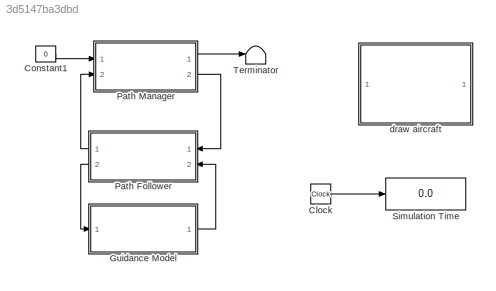
MODEL slx_3d5147ba3dbd
KIND model
CONFIG AbsTol = auto
CONFIG FixedStep = auto
CONFIG InitFcn = param_chap10
CONFIG MaxStep = auto
CONFIG MinStep = auto
CONFIG RelTol = 1e-3
CONFIG SampleTimeConstraint = Unconstrained
CONFIG Solver = ode45
CONFIG SolverMode = Auto
CONFIG SolverName = ode45
CONFIG StartTime = 0.0
CONFIG StopTime = 400
BLOCK [Clock] Clock
BLOCK [Constant] Constant1
  Value = 0
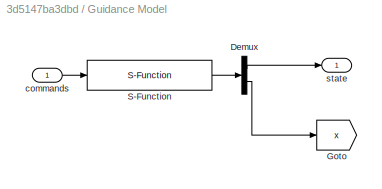
BLOCK [SubSystem] Guidance Model
  Ports = [1, 1]
  RequestExecContextInheritance = off
  Variant = off
BLOCK [Demux] Guidance Model/Demux
  DisplayOption = bar
  Outputs = [16;12]
  Ports = [1, 2]
BLOCK [Goto] Guidance Model/Goto
  GotoTag = x
  TagVisibility = global
BLOCK [S-Function] Guidance Model/S-Function
  EnableBusSupport = off
  FunctionName = guidance_model
  Parameters = P
  Ports = [1, 1]
  SFunctionDeploymentMode = off
BLOCK [Inport] Guidance Model/commands
  IconDisplay = Port number
BLOCK [Outport] Guidance Model/state
  IconDisplay = Port number
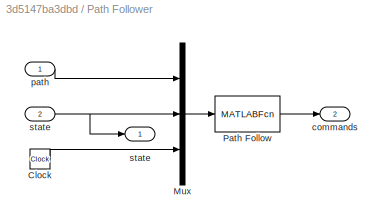
BLOCK [SubSystem] Path Follower
  Ports = [2, 2]
  RequestExecContextInheritance = off
  Variant = off
BLOCK [Clock] Path Follower/Clock
BLOCK [Mux] Path Follower/Mux
  DisplayOption = bar
  Inputs = 3
  Ports = [3, 1]
BLOCK [MATLABFcn] Path Follower/Path Follow
  MATLABFcn = path_follow(u,P)
  OutputDimensions = 4
  Ports = [1, 1]
  SampleTime = P.Ts
BLOCK [Outport] Path Follower/commands
  IconDisplay = Port number
  Port = 2
BLOCK [Inport] Path Follower/path
  IconDisplay = Port number
BLOCK [Inport] Path Follower/state
  IconDisplay = Port number
  Port = 2
BLOCK [Outport] Path Follower/state 
  IconDisplay = Port number
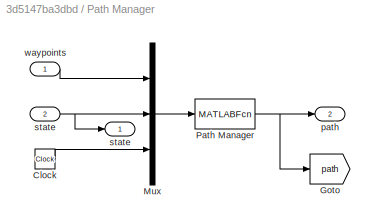
BLOCK [SubSystem] Path Manager
  Ports = [2, 2]
  RequestExecContextInheritance = off
  Variant = off
BLOCK [Clock] Path Manager/Clock
BLOCK [Goto] Path Manager/Goto
  GotoTag = path
  TagVisibility = global
BLOCK [Mux] Path Manager/Mux
  DisplayOption = bar
  Inputs = 3
  Ports = [3, 1]
BLOCK [MATLABFcn] Path Manager/Path Manager
  MATLABFcn = path_manager_chap10(u)
  OutputDimensions = 13
  Ports = [1, 1]
  SampleTime = P.Ts
BLOCK [Outport] Path Manager/path
  IconDisplay = Port number
  Port = 2
BLOCK [Inport] Path Manager/state
  IconDisplay = Port number
  Port = 2
BLOCK [Outport] Path Manager/state 
  IconDisplay = Port number
BLOCK [Inport] Path Manager/waypoints
  IconDisplay = Port number
BLOCK [Display] Simulation Time
  Decimation = 1
  Ports = [1]
BLOCK [Terminator] Terminator
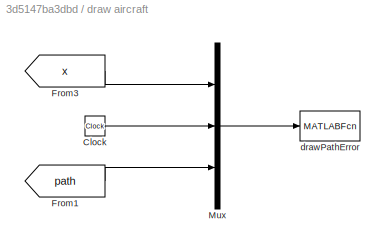
BLOCK [SubSystem] draw aircraft
  Ports = []
  RequestExecContextInheritance = off
  Variant = off
BLOCK [Clock] draw aircraft/Clock
BLOCK [From] draw aircraft/From1
  CloseFcn = tagdialog Close
  GotoTag = path
  TagVisibility = global
BLOCK [From] draw aircraft/From3
  CloseFcn = tagdialog Close
  GotoTag = x
  TagVisibility = global
BLOCK [Mux] draw aircraft/Mux
  DisplayOption = bar
  Inputs = 3
  Ports = [3, 1]
BLOCK [MATLABFcn] draw aircraft/drawPathError
  MATLABFcn = drawPathError(u)
  OutputDimensions = 0
  Ports = [1]
  SampleTime = 0.1
LINE Clock:1 -> Simulation Time:1
LINE Constant1:1 -> Path Manager:1
LINE Guidance Model/Demux:1 -> Guidance Model/state:1
LINE Guidance Model/Demux:2 -> Guidance Model/Goto:1
LINE Guidance Model/S-Function:1 -> Guidance Model/Demux:1
LINE Guidance Model/commands:1 -> Guidance Model/S-Function:1
LINE Guidance Model:1 -> Path Follower:2
LINE Path Follower/Clock:1 -> Path Follower/Mux:3
LINE Path Follower/Mux:1 -> Path Follower/Path Follow:1
LINE Path Follower/Path Follow:1 -> Path Follower/commands:1
LINE Path Follower/path:1 -> Path Follower/Mux:1
NET Path Follower/state:1 -> Path Follower/Mux:2, Path Follower/state :1
LINE Path Follower:1 -> Path Manager:2
LINE Path Follower:2 -> Guidance Model:1
LINE Path Manager/Clock:1 -> Path Manager/Mux:3
LINE Path Manager/Mux:1 -> Path Manager/Path Manager:1
NET Path Manager/Path Manager:1 -> Path Manager/Goto:1, Path Manager/path:1
NET Path Manager/state:1 -> Path Manager/Mux:2, Path Manager/state :1
LINE Path Manager/waypoints:1 -> Path Manager/Mux:1
LINE Path Manager:1 -> Terminator:1
LINE Path Manager:2 -> Path Follower:1
LINE draw aircraft/Clock:1 -> draw aircraft/Mux:2
LINE draw aircraft/From1:1 -> draw aircraft/Mux:3
LINE draw aircraft/From3:1 -> draw aircraft/Mux:1
LINE draw aircraft/Mux:1 -> draw aircraft/drawPathError:1
note: NET lines group one-source signal fan-out (src -> all destinations, sorted); 1:1 wires keep LINE
